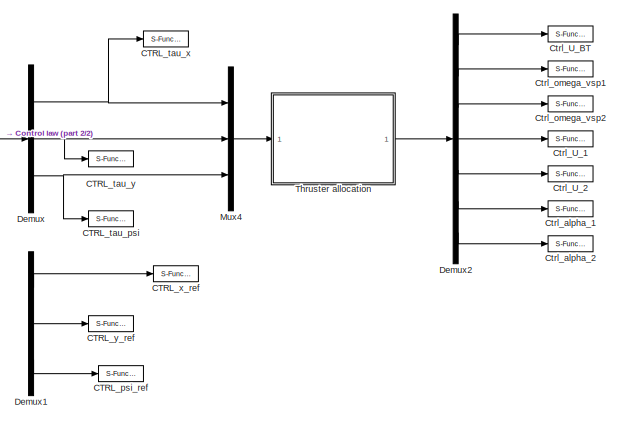
[diagram: root canvas - part 1/2, right side, full height]
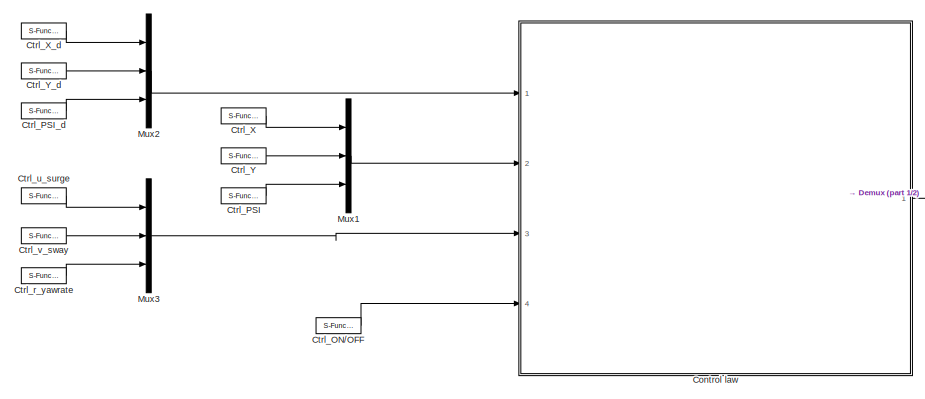
[diagram: root canvas - part 2/2, left side, full height]
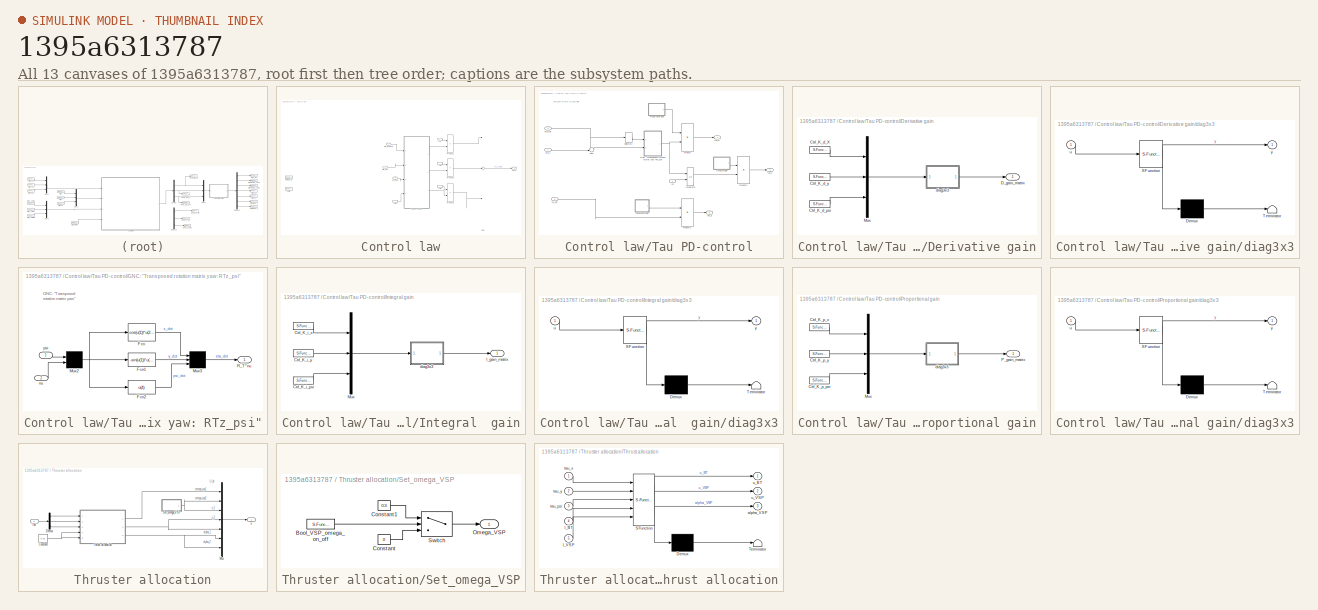
[diagram: thumbnail index - all 13 canvases of the model, root first then tree order]
MODEL slx_1395a6313787
KIND model
BLOCK [S-Function] CTRL_psi_ref
  CopyFcn = NIVeriStand_MDL_functions('', 'IO_copy');
  DeleteFcn = NIVeriStand_MDL_functions('', 'IO_delete');
  EnableBusSupport = off
  FunctionName = NIVeriStandIO
  MoveFcn = set_param(gcb, 'Mask', 'on');
  Parameters = width dtype portnum stime stype btype
  Ports = [1]
  Priority = 4
BLOCK [S-Function] CTRL_tau_psi
  CopyFcn = NIVeriStand_MDL_functions('', 'IO_copy');
  DeleteFcn = NIVeriStand_MDL_functions('', 'IO_delete');
  EnableBusSupport = off
  FunctionName = NIVeriStandIO
  MoveFcn = set_param(gcb, 'Mask', 'on');
  Parameters = width dtype portnum stime stype btype
  Ports = [1]
  Priority = 3
BLOCK [S-Function] CTRL_tau_x
  CopyFcn = NIVeriStand_MDL_functions('', 'IO_copy');
  DeleteFcn = NIVeriStand_MDL_functions('', 'IO_delete');
  EnableBusSupport = off
  FunctionName = NIVeriStandIO
  MoveFcn = set_param(gcb, 'Mask', 'on');
  Parameters = width dtype portnum stime stype btype
  Ports = [1]
  Priority = 1
BLOCK [S-Function] CTRL_tau_y
  CopyFcn = NIVeriStand_MDL_functions('', 'IO_copy');
  DeleteFcn = NIVeriStand_MDL_functions('', 'IO_delete');
  EnableBusSupport = off
  FunctionName = NIVeriStandIO
  MoveFcn = set_param(gcb, 'Mask', 'on');
  Parameters = width dtype portnum stime stype btype
  Ports = [1]
  Priority = 2
BLOCK [S-Function] CTRL_x_ref
  CopyFcn = NIVeriStand_MDL_functions('', 'IO_copy');
  DeleteFcn = NIVeriStand_MDL_functions('', 'IO_delete');
  EnableBusSupport = off
  FunctionName = NIVeriStandIO
  MoveFcn = set_param(gcb, 'Mask', 'on');
  Parameters = width dtype portnum stime stype btype
  Ports = [1]
  Priority = 5
BLOCK [S-Function] CTRL_y_ref
  CopyFcn = NIVeriStand_MDL_functions('', 'IO_copy');
  DeleteFcn = NIVeriStand_MDL_functions('', 'IO_delete');
  EnableBusSupport = off
  FunctionName = NIVeriStandIO
  MoveFcn = set_param(gcb, 'Mask', 'on');
  Parameters = width dtype portnum stime stype btype
  Ports = [1]
  Priority = 6
BLOCK [SubSystem] Control law
  Ports = [4, 1]
  RequestExecContextInheritance = off
BLOCK [Product] Control law/Product1
  InputSameDT = off
  OutDataTypeStr = Inherit: Inherit via internal rule
  Ports = [2, 1]
  RndMeth = Floor
  SaturateOnIntegerOverflow = off
BLOCK [Product] Control law/Product2
  InputSameDT = off
  OutDataTypeStr = Inherit: Inherit via internal rule
  Ports = [2, 1]
  RndMeth = Floor
  SaturateOnIntegerOverflow = off
BLOCK [Product] Control law/Product3
  InputSameDT = off
  OutDataTypeStr = Inherit: Inherit via internal rule
  Ports = [2, 1]
  RndMeth = Floor
  SaturateOnIntegerOverflow = off
BLOCK [Sum] Control law/Sum
  InputSameDT = off
  Inputs = ---
  OutDataTypeStr = Inherit: Inherit via internal rule
  Ports = [3, 1]
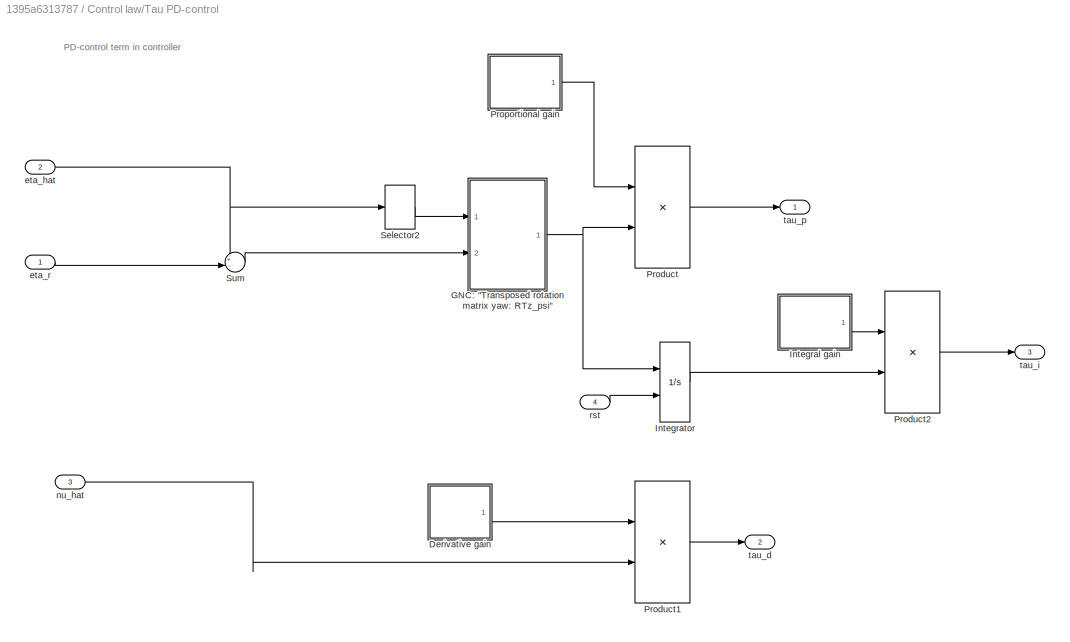
BLOCK [SubSystem] Control law/Tau PD-control
  Ports = [4, 3]
  RequestExecContextInheritance = off
BLOCK [SubSystem] Control law/Tau PD-control/Derivative gain
  Ports = [0, 1]
  RequestExecContextInheritance = off
BLOCK [S-Function] Control law/Tau PD-control/Derivative gain/Ctrl_K_d_X
  CopyFcn = NIVeriStand_MDL_functions('', 'IO_copy');
  DeleteFcn = NIVeriStand_MDL_functions('', 'IO_delete');
  EnableBusSupport = off
  FunctionName = NIVeriStandIO
  MoveFcn = set_param(gcb, 'Mask', 'on');
  Parameters = width dtype portnum stime stype btype
  Ports = [0, 1]
  Priority = 1
BLOCK [S-Function] Control law/Tau PD-control/Derivative gain/Ctrl_K_d_psi
  CopyFcn = NIVeriStand_MDL_functions('', 'IO_copy');
  DeleteFcn = NIVeriStand_MDL_functions('', 'IO_delete');
  EnableBusSupport = off
  FunctionName = NIVeriStandIO
  MoveFcn = set_param(gcb, 'Mask', 'on');
  Parameters = width dtype portnum stime stype btype
  Ports = [0, 1]
  Priority = 2
BLOCK [S-Function] Control law/Tau PD-control/Derivative gain/Ctrl_K_d_y
  CopyFcn = NIVeriStand_MDL_functions('', 'IO_copy');
  DeleteFcn = NIVeriStand_MDL_functions('', 'IO_delete');
  EnableBusSupport = off
  FunctionName = NIVeriStandIO
  MoveFcn = set_param(gcb, 'Mask', 'on');
  Parameters = width dtype portnum stime stype btype
  Ports = [0, 1]
  Priority = 3
BLOCK [Outport] Control law/Tau PD-control/Derivative gain/D_gain_matrix
  IconDisplay = Port number
BLOCK [Mux] Control law/Tau PD-control/Derivative gain/Mux
  DisplayOption = bar
  Inputs = 3
  Ports = [3, 1]
BLOCK [SubSystem] Control law/Tau PD-control/Derivative gain/diag3x3
  ErrorFcn = Stateflow.Translate.translate
  PermitHierarchicalResolution = ExplicitOnly
  Ports = [1, 1]
  RequestExecContextInheritance = off
  SFBlockType = MATLAB Function
  TreatAsAtomicUnit = on
BLOCK [Demux] Control law/Tau PD-control/Derivative gain/diag3x3/ Demux 
  Outputs = 1
  Ports = [1, 1]
BLOCK [S-Function] Control law/Tau PD-control/Derivative gain/diag3x3/ SFunction 
  EnableBusSupport = on
  FunctionName = sf_sfun
  PortCounts = [1 2]
  Ports = [1, 2]
  Tag = Stateflow S-Function Ctrl_Kjerstad_DP_1 3
BLOCK [Terminator] Control law/Tau PD-control/Derivative gain/diag3x3/ Terminator 
BLOCK [Inport] Control law/Tau PD-control/Derivative gain/diag3x3/u
  IconDisplay = Port number
BLOCK [Outport] Control law/Tau PD-control/Derivative gain/diag3x3/y
  IconDisplay = Port number
BLOCK [SubSystem] Control law/Tau PD-control/GNC: "Transposed rotation matrix yaw: RTz_psi"
  Ports = [2, 1]
  RequestExecContextInheritance = off
BLOCK [Fcn] Control law/Tau PD-control/GNC: "Transposed rotation matrix yaw: RTz_psi"/Fcn
  Expr = cos(u(1))*u(2)+sin(u(1))*u(3)
BLOCK [Fcn] Control law/Tau PD-control/GNC: "Transposed rotation matrix yaw: RTz_psi"/Fcn1
  Expr = -sin(u(1))*u(2)+cos(u(1))*u(3)
BLOCK [Fcn] Control law/Tau PD-control/GNC: "Transposed rotation matrix yaw: RTz_psi"/Fcn2
  Expr = u(4)
BLOCK [Mux] Control law/Tau PD-control/GNC: "Transposed rotation matrix yaw: RTz_psi"/Mux2
  Inputs = 2
  Ports = [2, 1]
BLOCK [Mux] Control law/Tau PD-control/GNC: "Transposed rotation matrix yaw: RTz_psi"/Mux3
  Inputs = 3
  Ports = [3, 1]
BLOCK [Outport] Control law/Tau PD-control/GNC: "Transposed rotation matrix yaw: RTz_psi"/R_T*nu
  IconDisplay = Port number
BLOCK [Inport] Control law/Tau PD-control/GNC: "Transposed rotation matrix yaw: RTz_psi"/nu
  IconDisplay = Port number
  Port = 2
  PortDimensions = 3
BLOCK [Inport] Control law/Tau PD-control/GNC: "Transposed rotation matrix yaw: RTz_psi"/psi
  IconDisplay = Port number
BLOCK [SubSystem] Control law/Tau PD-control/Integral  gain
  Ports = [0, 1]
  RequestExecContextInheritance = off
BLOCK [S-Function] Control law/Tau PD-control/Integral  gain/Ctrl_K_i_psi
  CopyFcn = NIVeriStand_MDL_functions('', 'IO_copy');
  DeleteFcn = NIVeriStand_MDL_functions('', 'IO_delete');
  EnableBusSupport = off
  FunctionName = NIVeriStandIO
  MoveFcn = set_param(gcb, 'Mask', 'on');
  Parameters = width dtype portnum stime stype btype
  Ports = [0, 1]
  Priority = 1
BLOCK [S-Function] Control law/Tau PD-control/Integral  gain/Ctrl_K_i_x
  CopyFcn = NIVeriStand_MDL_functions('', 'IO_copy');
  DeleteFcn = NIVeriStand_MDL_functions('', 'IO_delete');
  EnableBusSupport = off
  FunctionName = NIVeriStandIO
  MoveFcn = set_param(gcb, 'Mask', 'on');
  Parameters = width dtype portnum stime stype btype
  Ports = [0, 1]
  Priority = 2
BLOCK [S-Function] Control law/Tau PD-control/Integral  gain/Ctrl_K_i_y
  CopyFcn = NIVeriStand_MDL_functions('', 'IO_copy');
  DeleteFcn = NIVeriStand_MDL_functions('', 'IO_delete');
  EnableBusSupport = off
  FunctionName = NIVeriStandIO
  MoveFcn = set_param(gcb, 'Mask', 'on');
  Parameters = width dtype portnum stime stype btype
  Ports = [0, 1]
  Priority = 3
BLOCK [Outport] Control law/Tau PD-control/Integral  gain/I_gain_matrix
  IconDisplay = Port number
BLOCK [Mux] Control law/Tau PD-control/Integral  gain/Mux
  DisplayOption = bar
  Inputs = 3
  Ports = [3, 1]
BLOCK [SubSystem] Control law/Tau PD-control/Integral  gain/diag3x3
  ErrorFcn = Stateflow.Translate.translate
  PermitHierarchicalResolution = ExplicitOnly
  Ports = [1, 1]
  RequestExecContextInheritance = off
  SFBlockType = MATLAB Function
  TreatAsAtomicUnit = on
BLOCK [Demux] Control law/Tau PD-control/Integral  gain/diag3x3/ Demux 
  Outputs = 1
  Ports = [1, 1]
BLOCK [S-Function] Control law/Tau PD-control/Integral  gain/diag3x3/ SFunction 
  EnableBusSupport = on
  FunctionName = sf_sfun
  PortCounts = [1 2]
  Ports = [1, 2]
  Tag = Stateflow S-Function Ctrl_Kjerstad_DP_1 1
BLOCK [Terminator] Control law/Tau PD-control/Integral  gain/diag3x3/ Terminator 
BLOCK [Inport] Control law/Tau PD-control/Integral  gain/diag3x3/u
  IconDisplay = Port number
BLOCK [Outport] Control law/Tau PD-control/Integral  gain/diag3x3/y
  IconDisplay = Port number
BLOCK [Integrator] Control law/Tau PD-control/Integrator
  ExternalReset = rising
  Ports = [2, 1]
BLOCK [Product] Control law/Tau PD-control/Product
  InputSameDT = off
  Multiplication = Matrix(*)
  OutDataTypeStr = Inherit: Inherit via internal rule
  Ports = [2, 1]
  RndMeth = Floor
  SaturateOnIntegerOverflow = off
BLOCK [Product] Control law/Tau PD-control/Product1
  InputSameDT = off
  Multiplication = Matrix(*)
  OutDataTypeStr = Inherit: Inherit via internal rule
  Ports = [2, 1]
  RndMeth = Floor
  SaturateOnIntegerOverflow = off
BLOCK [Product] Control law/Tau PD-control/Product2
  InputSameDT = off
  Multiplication = Matrix(*)
  OutDataTypeStr = Inherit: Inherit via internal rule
  Ports = [2, 1]
  RndMeth = Floor
  SaturateOnIntegerOverflow = off
BLOCK [SubSystem] Control law/Tau PD-control/Proportional gain
  Ports = [0, 1]
  RequestExecContextInheritance = off
BLOCK [S-Function] Control law/Tau PD-control/Proportional gain/Ctrl_K_p_psi
  CopyFcn = NIVeriStand_MDL_functions('', 'IO_copy');
  DeleteFcn = NIVeriStand_MDL_functions('', 'IO_delete');
  EnableBusSupport = off
  FunctionName = NIVeriStandIO
  MoveFcn = set_param(gcb, 'Mask', 'on');
  Parameters = width dtype portnum stime stype btype
  Ports = [0, 1]
  Priority = 1
BLOCK [S-Function] Control law/Tau PD-control/Proportional gain/Ctrl_K_p_x
  CopyFcn = NIVeriStand_MDL_functions('', 'IO_copy');
  DeleteFcn = NIVeriStand_MDL_functions('', 'IO_delete');
  EnableBusSupport = off
  FunctionName = NIVeriStandIO
  MoveFcn = set_param(gcb, 'Mask', 'on');
  Parameters = width dtype portnum stime stype btype
  Ports = [0, 1]
  Priority = 2
BLOCK [S-Function] Control law/Tau PD-control/Proportional gain/Ctrl_K_p_y
  CopyFcn = NIVeriStand_MDL_functions('', 'IO_copy');
  DeleteFcn = NIVeriStand_MDL_functions('', 'IO_delete');
  EnableBusSupport = off
  FunctionName = NIVeriStandIO
  MoveFcn = set_param(gcb, 'Mask', 'on');
  Parameters = width dtype portnum stime stype btype
  Ports = [0, 1]
  Priority = 3
BLOCK [Mux] Control law/Tau PD-control/Proportional gain/Mux
  DisplayOption = bar
  Inputs = 3
  Ports = [3, 1]
BLOCK [Outport] Control law/Tau PD-control/Proportional gain/P_gain_matrix
  IconDisplay = Port number
BLOCK [SubSystem] Control law/Tau PD-control/Proportional gain/diag3x3
  ErrorFcn = Stateflow.Translate.translate
  PermitHierarchicalResolution = ExplicitOnly
  Ports = [1, 1]
  RequestExecContextInheritance = off
  SFBlockType = MATLAB Function
  TreatAsAtomicUnit = on
BLOCK [Demux] Control law/Tau PD-control/Proportional gain/diag3x3/ Demux 
  Outputs = 1
  Ports = [1, 1]
BLOCK [S-Function] Control law/Tau PD-control/Proportional gain/diag3x3/ SFunction 
  EnableBusSupport = on
  FunctionName = sf_sfun
  PortCounts = [1 2]
  Ports = [1, 2]
  Tag = Stateflow S-Function Ctrl_Kjerstad_DP_1 2
BLOCK [Terminator] Control law/Tau PD-control/Proportional gain/diag3x3/ Terminator 
BLOCK [Inport] Control law/Tau PD-control/Proportional gain/diag3x3/u
  IconDisplay = Port number
BLOCK [Outport] Control law/Tau PD-control/Proportional gain/diag3x3/y
  IconDisplay = Port number
BLOCK [Selector] Control law/Tau PD-control/Selector2
  Indices = [3]
  InputPortWidth = 3
  Ports = [1, 1]
BLOCK [Sum] Control law/Tau PD-control/Sum
  IconShape = round
  InputSameDT = off
  Inputs = +-|
  OutDataTypeStr = Inherit: Inherit via internal rule
  Ports = [2, 1]
BLOCK [Inport] Control law/Tau PD-control/eta_hat
  IconDisplay = Port number
  Port = 2
BLOCK [Inport] Control law/Tau PD-control/eta_r
  IconDisplay = Port number
BLOCK [Inport] Control law/Tau PD-control/nu_hat
  IconDisplay = Port number
  Port = 3
BLOCK [Inport] Control law/Tau PD-control/rst
  IconDisplay = Port number
  Port = 4
BLOCK [Outport] Control law/Tau PD-control/tau_d
  IconDisplay = Port number
  Port = 2
  PortDimensions = 3
BLOCK [Outport] Control law/Tau PD-control/tau_i
  IconDisplay = Port number
  Port = 3
  PortDimensions = 3
BLOCK [Outport] Control law/Tau PD-control/tau_p
  IconDisplay = Port number
  PortDimensions = 3
BLOCK [Inport] Control law/eta_desired
  IconDisplay = Port number
BLOCK [Inport] Control law/eta_hat
  IconDisplay = Port number
  Port = 2
BLOCK [Inport] Control law/nu_hat
  IconDisplay = Port number
  Port = 3
BLOCK [S-Function] Control law/omega_d
  CopyFcn = NIVeriStand_MDL_functions('', 'IO_copy');
  DeleteFcn = NIVeriStand_MDL_functions('', 'IO_delete');
  EnableBusSupport = off
  FunctionName = NIVeriStandIO
  MoveFcn = set_param(gcb, 'Mask', 'on');
  Parameters = width dtype portnum stime stype btype
  Ports = [0, 1]
  Priority = 1
BLOCK [Inport] Control law/rst
  IconDisplay = Port number
  Port = 4
BLOCK [InportShadow] Control law/rst2
  IconDisplay = Port number
  Port = 4
BLOCK [InportShadow] Control law/rst4
  IconDisplay = Port number
  Port = 4
BLOCK [InportShadow] Control law/rst5
  IconDisplay = Port number
  Port = 4
BLOCK [Outport] Control law/tau_c
  IconDisplay = Port number
BLOCK [S-Function] Control law/zeta
  CopyFcn = NIVeriStand_MDL_functions('', 'IO_copy');
  DeleteFcn = NIVeriStand_MDL_functions('', 'IO_delete');
  EnableBusSupport = off
  FunctionName = NIVeriStandIO
  MoveFcn = set_param(gcb, 'Mask', 'on');
  Parameters = width dtype portnum stime stype btype
  Ports = [0, 1]
  Priority = 2
BLOCK [S-Function] Ctrl_ON//OFF
  CopyFcn = NIVeriStand_MDL_functions('', 'IO_copy');
  DeleteFcn = NIVeriStand_MDL_functions('', 'IO_delete');
  EnableBusSupport = off
  FunctionName = NIVeriStandIO
  MoveFcn = set_param(gcb, 'Mask', 'on');
  Parameters = width dtype portnum stime stype btype
  Ports = [0, 1]
  Priority = 10
BLOCK [S-Function] Ctrl_PSI
  CopyFcn = NIVeriStand_MDL_functions('', 'IO_copy');
  DeleteFcn = NIVeriStand_MDL_functions('', 'IO_delete');
  EnableBusSupport = off
  FunctionName = NIVeriStandIO
  MoveFcn = set_param(gcb, 'Mask', 'on');
  Parameters = width dtype portnum stime stype btype
  Ports = [0, 1]
  Priority = 3
BLOCK [S-Function] Ctrl_PSI_d
  CopyFcn = NIVeriStand_MDL_functions('', 'IO_copy');
  DeleteFcn = NIVeriStand_MDL_functions('', 'IO_delete');
  EnableBusSupport = off
  FunctionName = NIVeriStandIO
  MoveFcn = set_param(gcb, 'Mask', 'on');
  Parameters = width dtype portnum stime stype btype
  Ports = [0, 1]
  Priority = 6
BLOCK [S-Function] Ctrl_U_1
  CopyFcn = NIVeriStand_MDL_functions('', 'IO_copy');
  DeleteFcn = NIVeriStand_MDL_functions('', 'IO_delete');
  EnableBusSupport = off
  FunctionName = NIVeriStandIO
  MoveFcn = set_param(gcb, 'Mask', 'on');
  Parameters = width dtype portnum stime stype btype
  Ports = [1]
  Priority = 7
BLOCK [S-Function] Ctrl_U_2
  CopyFcn = NIVeriStand_MDL_functions('', 'IO_copy');
  DeleteFcn = NIVeriStand_MDL_functions('', 'IO_delete');
  EnableBusSupport = off
  FunctionName = NIVeriStandIO
  MoveFcn = set_param(gcb, 'Mask', 'on');
  Parameters = width dtype portnum stime stype btype
  Ports = [1]
  Priority = 8
BLOCK [S-Function] Ctrl_U_BT
  CopyFcn = NIVeriStand_MDL_functions('', 'IO_copy');
  DeleteFcn = NIVeriStand_MDL_functions('', 'IO_delete');
  EnableBusSupport = off
  FunctionName = NIVeriStandIO
  MoveFcn = set_param(gcb, 'Mask', 'on');
  Parameters = width dtype portnum stime stype btype
  Ports = [1]
  Priority = 11
BLOCK [S-Function] Ctrl_X
  CopyFcn = NIVeriStand_MDL_functions('', 'IO_copy');
  DeleteFcn = NIVeriStand_MDL_functions('', 'IO_delete');
  EnableBusSupport = off
  FunctionName = NIVeriStandIO
  MoveFcn = set_param(gcb, 'Mask', 'on');
  Parameters = width dtype portnum stime stype btype
  Ports = [0, 1]
  Priority = 1
BLOCK [S-Function] Ctrl_X_d
  CopyFcn = NIVeriStand_MDL_functions('', 'IO_copy');
  DeleteFcn = NIVeriStand_MDL_functions('', 'IO_delete');
  EnableBusSupport = off
  FunctionName = NIVeriStandIO
  MoveFcn = set_param(gcb, 'Mask', 'on');
  Parameters = width dtype portnum stime stype btype
  Ports = [0, 1]
  Priority = 4
BLOCK [S-Function] Ctrl_Y
  CopyFcn = NIVeriStand_MDL_functions('', 'IO_copy');
  DeleteFcn = NIVeriStand_MDL_functions('', 'IO_delete');
  EnableBusSupport = off
  FunctionName = NIVeriStandIO
  MoveFcn = set_param(gcb, 'Mask', 'on');
  Parameters = width dtype portnum stime stype btype
  Ports = [0, 1]
  Priority = 2
BLOCK [S-Function] Ctrl_Y_d
  CopyFcn = NIVeriStand_MDL_functions('', 'IO_copy');
  DeleteFcn = NIVeriStand_MDL_functions('', 'IO_delete');
  EnableBusSupport = off
  FunctionName = NIVeriStandIO
  MoveFcn = set_param(gcb, 'Mask', 'on');
  Parameters = width dtype portnum stime stype btype
  Ports = [0, 1]
  Priority = 5
BLOCK [S-Function] Ctrl_alpha_1
  CopyFcn = NIVeriStand_MDL_functions('', 'IO_copy');
  DeleteFcn = NIVeriStand_MDL_functions('', 'IO_delete');
  EnableBusSupport = off
  FunctionName = NIVeriStandIO
  MoveFcn = set_param(gcb, 'Mask', 'on');
  Parameters = width dtype portnum stime stype btype
  Ports = [1]
  Priority = 9
BLOCK [S-Function] Ctrl_alpha_2
  CopyFcn = NIVeriStand_MDL_functions('', 'IO_copy');
  DeleteFcn = NIVeriStand_MDL_functions('', 'IO_delete');
  EnableBusSupport = off
  FunctionName = NIVeriStandIO
  MoveFcn = set_param(gcb, 'Mask', 'on');
  Parameters = width dtype portnum stime stype btype
  Ports = [1]
  Priority = 10
BLOCK [S-Function] Ctrl_omega_vsp1
  CopyFcn = NIVeriStand_MDL_functions('', 'IO_copy');
  DeleteFcn = NIVeriStand_MDL_functions('', 'IO_delete');
  EnableBusSupport = off
  FunctionName = NIVeriStandIO
  MoveFcn = set_param(gcb, 'Mask', 'on');
  Parameters = width dtype portnum stime stype btype
  Ports = [1]
  Priority = 12
BLOCK [S-Function] Ctrl_omega_vsp2
  CopyFcn = NIVeriStand_MDL_functions('', 'IO_copy');
  DeleteFcn = NIVeriStand_MDL_functions('', 'IO_delete');
  EnableBusSupport = off
  FunctionName = NIVeriStandIO
  MoveFcn = set_param(gcb, 'Mask', 'on');
  Parameters = width dtype portnum stime stype btype
  Ports = [1]
  Priority = 13
BLOCK [S-Function] Ctrl_r_yawrate
  CopyFcn = NIVeriStand_MDL_functions('', 'IO_copy');
  DeleteFcn = NIVeriStand_MDL_functions('', 'IO_delete');
  EnableBusSupport = off
  FunctionName = NIVeriStandIO
  MoveFcn = set_param(gcb, 'Mask', 'on');
  Parameters = width dtype portnum stime stype btype
  Ports = [0, 1]
  Priority = 7
BLOCK [S-Function] Ctrl_u_surge
  CopyFcn = NIVeriStand_MDL_functions('', 'IO_copy');
  DeleteFcn = NIVeriStand_MDL_functions('', 'IO_delete');
  EnableBusSupport = off
  FunctionName = NIVeriStandIO
  MoveFcn = set_param(gcb, 'Mask', 'on');
  Parameters = width dtype portnum stime stype btype
  Ports = [0, 1]
  Priority = 8
BLOCK [S-Function] Ctrl_v_sway
  CopyFcn = NIVeriStand_MDL_functions('', 'IO_copy');
  DeleteFcn = NIVeriStand_MDL_functions('', 'IO_delete');
  EnableBusSupport = off
  FunctionName = NIVeriStandIO
  MoveFcn = set_param(gcb, 'Mask', 'on');
  Parameters = width dtype portnum stime stype btype
  Ports = [0, 1]
  Priority = 9
BLOCK [Demux] Demux
  DisplayOption = bar
  Outputs = 3
  Ports = [1, 3]
BLOCK [Demux] Demux1
  DisplayOption = bar
  Outputs = 3
  Ports = [1, 3]
BLOCK [Demux] Demux2
  DisplayOption = bar
  Outputs = 7
  Ports = [1, 7]
BLOCK [Mux] Mux1
  DisplayOption = bar
  Inputs = 3
  Ports = [3, 1]
BLOCK [Mux] Mux2
  DisplayOption = bar
  Inputs = 3
  Ports = [3, 1]
BLOCK [Mux] Mux3
  DisplayOption = bar
  Inputs = 3
  Ports = [3, 1]
BLOCK [Mux] Mux4
  DisplayOption = bar
  Inputs = 3
  Ports = [3, 1]
BLOCK [SubSystem] Thruster allocation
  Ports = [1, 1]
  RequestExecContextInheritance = off
BLOCK [Constant] Thruster allocation/Constant
  Value = 0.42
BLOCK [Demux] Thruster allocation/Demux
  DisplayOption = bar
  Outputs = 3
  Ports = [1, 3]
BLOCK [Mux] Thruster allocation/Mux
  DisplayOption = bar
  Inputs = 7
  Ports = [7, 1]
BLOCK [SubSystem] Thruster allocation/Set_omega_VSP
  Ports = [0, 1]
  RequestExecContextInheritance = off
BLOCK [S-Function] Thruster allocation/Set_omega_VSP/Bool_VSP_omega_on_off
  CopyFcn = NIVeriStand_MDL_functions('', 'IO_copy');
  DeleteFcn = NIVeriStand_MDL_functions('', 'IO_delete');
  EnableBusSupport = off
  FunctionName = NIVeriStandIO
  MoveFcn = set_param(gcb, 'Mask', 'on');
  Parameters = width dtype portnum stime stype btype
  Ports = [0, 1]
  Priority = 1
BLOCK [Constant] Thruster allocation/Set_omega_VSP/Constant
  Value = 0
BLOCK [Constant] Thruster allocation/Set_omega_VSP/Constant1
  Value = 0.3
BLOCK [Outport] Thruster allocation/Set_omega_VSP/Omega_VSP
  IconDisplay = Port number
BLOCK [Switch] Thruster allocation/Set_omega_VSP/Switch
  Criteria = u2 ~= 0
  InputSameDT = off
  SaturateOnIntegerOverflow = off
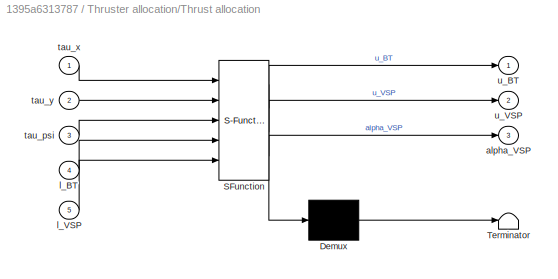
BLOCK [SubSystem] Thruster allocation/Thrust allocation
  ErrorFcn = Stateflow.Translate.translate
  PermitHierarchicalResolution = ExplicitOnly
  Ports = [5, 3]
  RequestExecContextInheritance = off
  SFBlockType = MATLAB Function
  TreatAsAtomicUnit = on
BLOCK [Demux] Thruster allocation/Thrust allocation/ Demux 
  Outputs = 1
  Ports = [1, 1]
BLOCK [S-Function] Thruster allocation/Thrust allocation/ SFunction 
  EnableBusSupport = on
  FunctionName = sf_sfun
  PortCounts = [5 4]
  Ports = [5, 4]
  Tag = Stateflow S-Function Ctrl_Kjerstad_DP_1 6
BLOCK [Terminator] Thruster allocation/Thrust allocation/ Terminator 
BLOCK [Outport] Thruster allocation/Thrust allocation/alpha_VSP
  IconDisplay = Port number
  Port = 3
BLOCK [Inport] Thruster allocation/Thrust allocation/l_BT
  IconDisplay = Port number
  Port = 4
BLOCK [Inport] Thruster allocation/Thrust allocation/l_VSP
  IconDisplay = Port number
  Port = 5
BLOCK [Inport] Thruster allocation/Thrust allocation/tau_psi
  IconDisplay = Port number
  Port = 3
BLOCK [Inport] Thruster allocation/Thrust allocation/tau_x
  IconDisplay = Port number
BLOCK [Inport] Thruster allocation/Thrust allocation/tau_y
  IconDisplay = Port number
  Port = 2
BLOCK [Outport] Thruster allocation/Thrust allocation/u_BT
  IconDisplay = Port number
BLOCK [Outport] Thruster allocation/Thrust allocation/u_VSP
  IconDisplay = Port number
  Port = 2
BLOCK [Inport] Thruster allocation/tau
  IconDisplay = Port number
BLOCK [Outport] Thruster allocation/u
  IconDisplay = Port number
ANNOTATION Control law/Tau PD-control: PD-control term in controller
ANNOTATION Control law/Tau PD-control/GNC: "Transposed rotation matrix yaw: RTz_psi": GNC: "Transposed rotation matrix yaw"
ANNOTATION Thruster allocation: U_bt
ANNOTATION Thruster allocation: alpha_1
ANNOTATION Thruster allocation: alpha_2
ANNOTATION Thruster allocation: omega_vsp1
ANNOTATION Thruster allocation: omega_vsp2
ANNOTATION Thruster allocation: u_1
ANNOTATION Thruster allocation: u_2
LINE Control law/Product1:1 -> Control law/Sum:1
LINE Control law/Product2:1 -> Control law/Sum:2
LINE Control law/Product3:1 -> Control law/Sum:3
LINE Control law/Sum:1 -> Control law/tau_c:1
LINE Control law/Tau PD-control/Derivative gain/Ctrl_K_d_X:1 -> Control law/Tau PD-control/Derivative gain/Mux:1
LINE Control law/Tau PD-control/Derivative gain/Ctrl_K_d_psi:1 -> Control law/Tau PD-control/Derivative gain/Mux:3
LINE Control law/Tau PD-control/Derivative gain/Ctrl_K_d_y:1 -> Control law/Tau PD-control/Derivative gain/Mux:2
LINE Control law/Tau PD-control/Derivative gain/Mux:1 -> Control law/Tau PD-control/Derivative gain/diag3x3:1
LINE Control law/Tau PD-control/Derivative gain/diag3x3:1 -> Control law/Tau PD-control/Derivative gain/D_gain_matrix:1
LINE Control law/Tau PD-control/Derivative gain:1 -> Control law/Tau PD-control/Product1:1
LINE Control law/Tau PD-control/GNC: "Transposed rotation matrix yaw: RTz_psi"/Fcn1:1 -> Control law/Tau PD-control/GNC: "Transposed rotation matrix yaw: RTz_psi"/Mux3:2
LINE Control law/Tau PD-control/GNC: "Transposed rotation matrix yaw: RTz_psi"/Fcn2:1 -> Control law/Tau PD-control/GNC: "Transposed rotation matrix yaw: RTz_psi"/Mux3:3
LINE Control law/Tau PD-control/GNC: "Transposed rotation matrix yaw: RTz_psi"/Fcn:1 -> Control law/Tau PD-control/GNC: "Transposed rotation matrix yaw: RTz_psi"/Mux3:1
NET Control law/Tau PD-control/GNC: "Transposed rotation matrix yaw: RTz_psi"/Mux2:1 -> Control law/Tau PD-control/GNC: "Transposed rotation matrix yaw: RTz_psi"/Fcn1:1, Control law/Tau PD-control/GNC: "Transposed rotation matrix yaw: RTz_psi"/Fcn2:1, Control law/Tau PD-control/GNC: "Transposed rotation matrix yaw: RTz_psi"/Fcn:1
LINE Control law/Tau PD-control/GNC: "Transposed rotation matrix yaw: RTz_psi"/Mux3:1 -> Control law/Tau PD-control/GNC: "Transposed rotation matrix yaw: RTz_psi"/R_T*nu:1
LINE Control law/Tau PD-control/GNC: "Transposed rotation matrix yaw: RTz_psi"/nu:1 -> Control law/Tau PD-control/GNC: "Transposed rotation matrix yaw: RTz_psi"/Mux2:2
LINE Control law/Tau PD-control/GNC: "Transposed rotation matrix yaw: RTz_psi"/psi:1 -> Control law/Tau PD-control/GNC: "Transposed rotation matrix yaw: RTz_psi"/Mux2:1
NET Control law/Tau PD-control/GNC: "Transposed rotation matrix yaw: RTz_psi":1 -> Control law/Tau PD-control/Integrator:1, Control law/Tau PD-control/Product:2
LINE Control law/Tau PD-control/Integral  gain/Ctrl_K_i_psi:1 -> Control law/Tau PD-control/Integral  gain/Mux:3
LINE Control law/Tau PD-control/Integral  gain/Ctrl_K_i_x:1 -> Control law/Tau PD-control/Integral  gain/Mux:1
LINE Control law/Tau PD-control/Integral  gain/Ctrl_K_i_y:1 -> Control law/Tau PD-control/Integral  gain/Mux:2
LINE Control law/Tau PD-control/Integral  gain/Mux:1 -> Control law/Tau PD-control/Integral  gain/diag3x3:1
LINE Control law/Tau PD-control/Integral  gain/diag3x3:1 -> Control law/Tau PD-control/Integral  gain/I_gain_matrix:1
LINE Control law/Tau PD-control/Integral  gain:1 -> Control law/Tau PD-control/Product2:1
LINE Control law/Tau PD-control/Integrator:1 -> Control law/Tau PD-control/Product2:2
LINE Control law/Tau PD-control/Product1:1 -> Control law/Tau PD-control/tau_d:1
LINE Control law/Tau PD-control/Product2:1 -> Control law/Tau PD-control/tau_i:1
LINE Control law/Tau PD-control/Product:1 -> Control law/Tau PD-control/tau_p:1
LINE Control law/Tau PD-control/Proportional gain/Ctrl_K_p_psi:1 -> Control law/Tau PD-control/Proportional gain/Mux:3
LINE Control law/Tau PD-control/Proportional gain/Ctrl_K_p_x:1 -> Control law/Tau PD-control/Proportional gain/Mux:1
LINE Control law/Tau PD-control/Proportional gain/Ctrl_K_p_y:1 -> Control law/Tau PD-control/Proportional gain/Mux:2
LINE Control law/Tau PD-control/Proportional gain/Mux:1 -> Control law/Tau PD-control/Proportional gain/diag3x3:1
LINE Control law/Tau PD-control/Proportional gain/diag3x3:1 -> Control law/Tau PD-control/Proportional gain/P_gain_matrix:1
LINE Control law/Tau PD-control/Proportional gain:1 -> Control law/Tau PD-control/Product:1
LINE Control law/Tau PD-control/Selector2:1 -> Control law/Tau PD-control/GNC: "Transposed rotation matrix yaw: RTz_psi":1
LINE Control law/Tau PD-control/Sum:1 -> Control law/Tau PD-control/GNC: "Transposed rotation matrix yaw: RTz_psi":2
NET Control law/Tau PD-control/eta_hat:1 -> Control law/Tau PD-control/Selector2:1, Control law/Tau PD-control/Sum:1
LINE Control law/Tau PD-control/eta_r:1 -> Control law/Tau PD-control/Sum:2
LINE Control law/Tau PD-control/nu_hat:1 -> Control law/Tau PD-control/Product1:2
LINE Control law/Tau PD-control/rst:1 -> Control law/Tau PD-control/Integrator:2
LINE Control law/Tau PD-control:1 -> Control law/Product1:2
LINE Control law/Tau PD-control:2 -> Control law/Product2:2
LINE Control law/Tau PD-control:3 -> Control law/Product3:2
LINE Control law/eta_desired:1 -> Control law/Tau PD-control:1
LINE Control law/eta_hat:1 -> Control law/Tau PD-control:2
LINE Control law/nu_hat:1 -> Control law/Tau PD-control:3
LINE Control law/rst2:1 -> Control law/Product2:1
LINE Control law/rst4:1 -> Control law/Tau PD-control:4
LINE Control law/rst5:1 -> Control law/Product3:1
LINE Control law/rst:1 -> Control law/Product1:1
LINE Control law:1 -> Demux:1
LINE Ctrl_ON//OFF:1 -> Control law:4
LINE Ctrl_PSI:1 -> Mux1:3
LINE Ctrl_PSI_d:1 -> Mux2:3
LINE Ctrl_X:1 -> Mux1:1
LINE Ctrl_X_d:1 -> Mux2:1
LINE Ctrl_Y:1 -> Mux1:2
LINE Ctrl_Y_d:1 -> Mux2:2
LINE Ctrl_r_yawrate:1 -> Mux3:3
LINE Ctrl_u_surge:1 -> Mux3:1
LINE Ctrl_v_sway:1 -> Mux3:2
LINE Demux1:1 -> CTRL_x_ref:1
LINE Demux1:2 -> CTRL_y_ref:1
LINE Demux1:3 -> CTRL_psi_ref:1
LINE Demux2:1 -> Ctrl_U_BT:1
LINE Demux2:2 -> Ctrl_omega_vsp1:1
LINE Demux2:3 -> Ctrl_omega_vsp2:1
LINE Demux2:4 -> Ctrl_U_1:1
LINE Demux2:5 -> Ctrl_U_2:1
LINE Demux2:6 -> Ctrl_alpha_1:1
LINE Demux2:7 -> Ctrl_alpha_2:1
NET Demux:1 -> CTRL_tau_x:1, Mux4:1
NET Demux:2 -> CTRL_tau_y:1, Mux4:2
NET Demux:3 -> CTRL_tau_psi:1, Mux4:3
LINE Mux1:1 -> Control law:2
LINE Mux2:1 -> Control law:1
LINE Mux3:1 -> Control law:3
LINE Mux4:1 -> Thruster allocation:1
NET Thruster allocation/Constant:1 -> Thruster allocation/Thrust allocation:4, Thruster allocation/Thrust allocation:5
LINE Thruster allocation/Demux:1 -> Thruster allocation/Thrust allocation:1
LINE Thruster allocation/Demux:2 -> Thruster allocation/Thrust allocation:2
LINE Thruster allocation/Demux:3 -> Thruster allocation/Thrust allocation:3
LINE Thruster allocation/Mux:1 -> Thruster allocation/u:1
LINE Thruster allocation/Set_omega_VSP/Bool_VSP_omega_on_off:1 -> Thruster allocation/Set_omega_VSP/Switch:2
LINE Thruster allocation/Set_omega_VSP/Constant1:1 -> Thruster allocation/Set_omega_VSP/Switch:1
LINE Thruster allocation/Set_omega_VSP/Constant:1 -> Thruster allocation/Set_omega_VSP/Switch:3
LINE Thruster allocation/Set_omega_VSP/Switch:1 -> Thruster allocation/Set_omega_VSP/Omega_VSP:1
NET Thruster allocation/Set_omega_VSP:1 -> Thruster allocation/Mux:2, Thruster allocation/Mux:3
LINE Thruster allocation/Thrust allocation:1 -> Thruster allocation/Mux:1
NET Thruster allocation/Thrust allocation:2 -> Thruster allocation/Mux:4, Thruster allocation/Mux:5
NET Thruster allocation/Thrust allocation:3 -> Thruster allocation/Mux:6, Thruster allocation/Mux:7
LINE Thruster allocation/tau:1 -> Thruster allocation/Demux:1
LINE Thruster allocation:1 -> Demux2:1
note: NET lines group one-source signal fan-out (src -> all destinations, sorted); 1:1 wires keep LINE
